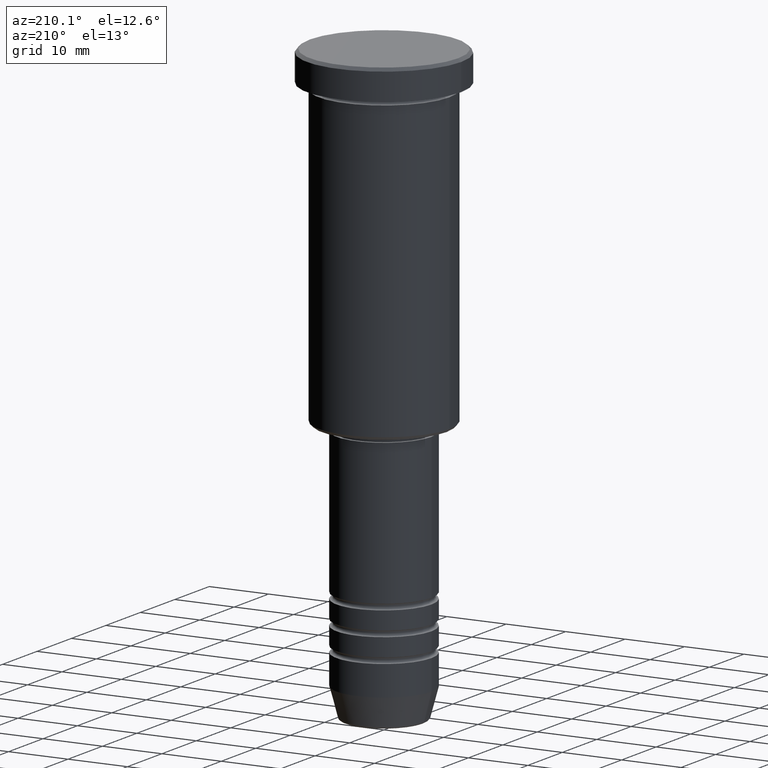
[diagram: clean part render]
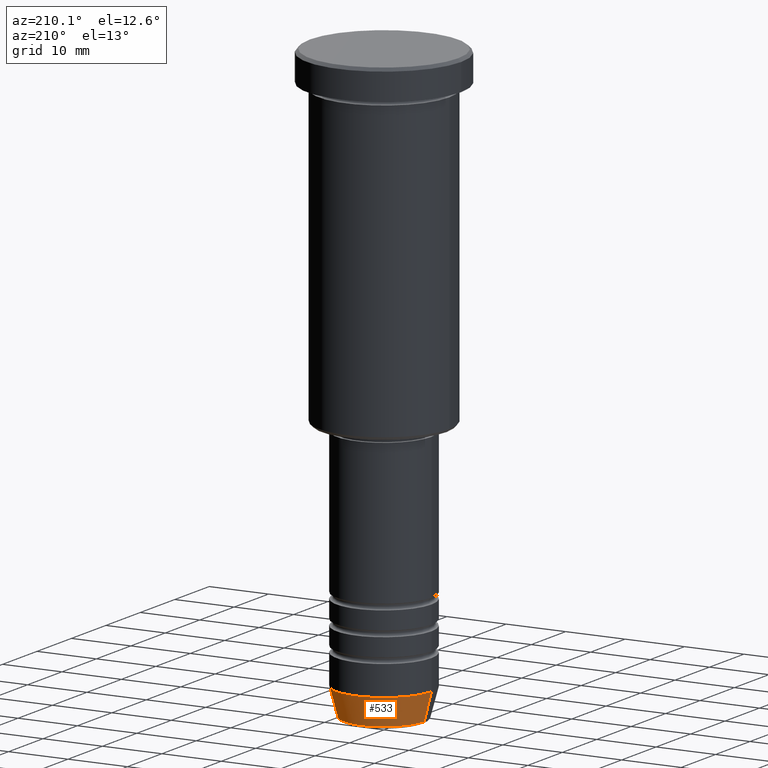
[diagram: same view with one face highlighted and labeled with its STEP entity id]
A machine part, auxiliary view. The second image highlights one B-rep face of the part: STEP entity #533.
In plain terms, the highlighted conical surface has half-angle 15 deg.
Its self-contained STEP definition (entity closure, byte-faithful):
#41 = DIRECTION ( 'NONE',  ( 1.000000000000000000, 0.000000000000000000, 0.000000000000000000 ) ) ;
#72 = DIRECTION ( 'NONE',  ( 0.2588190451025214611, 0.000000000000000000, 0.9659258262890679791 ) ) ;
#106 = VERTEX_POINT ( 'NONE', #133 ) ;
#115 = DIRECTION ( 'NONE',  ( 1.000000000000000000, 0.000000000000000000, 0.000000000000000000 ) ) ;
#126 = DIRECTION ( 'NONE',  ( -0.000000000000000000, -0.000000000000000000, 1.000000000000000000 ) ) ;
#133 = CARTESIAN_POINT ( 'NONE',  ( -8.000000000000000000, 9.797174393178825657E-16, -95.00000000000000000 ) ) ;
#182 = CARTESIAN_POINT ( 'NONE',  ( -6.759553456999437770, 9.037619948979306213E-16, -99.62940952255127058 ) ) ;
#237 = ORIENTED_EDGE ( 'NONE', *, *, #254, .T. ) ;
#250 = VERTEX_POINT ( 'NONE', #975 ) ;
#254 = EDGE_CURVE ( 'NONE', #345, #106, #616, .T. ) ;
#281 = EDGE_LOOP ( 'NONE', ( #693, #237, #401, #650 ) ) ;
#334 = CARTESIAN_POINT ( 'NONE',  ( 6.759553456999436882, 0.000000000000000000, -99.62940952255127058 ) ) ;
#345 = VERTEX_POINT ( 'NONE', #182 ) ;
#391 = CARTESIAN_POINT ( 'NONE',  ( 0.000000000000000000, 0.000000000000000000, -95.00000000000000000 ) ) ;
#401 = ORIENTED_EDGE ( 'NONE', *, *, #1168, .F. ) ;
#461 = DIRECTION ( 'NONE',  ( 1.000000000000000000, 0.000000000000000000, 0.000000000000000000 ) ) ;
#533 = ADVANCED_FACE ( 'NONE', ( #930 ), #732, .T. ) ;
#548 = DIRECTION ( 'NONE',  ( -0.000000000000000000, -0.000000000000000000, 1.000000000000000000 ) ) ;
#575 = CARTESIAN_POINT ( 'NONE',  ( 0.000000000000000000, 0.000000000000000000, -95.00000000000000000 ) ) ;
#602 = CIRCLE ( 'NONE', #1054, 6.759553456999436882 ) ;
#616 = LINE ( 'NONE', #621, #1045 ) ;
#621 = CARTESIAN_POINT ( 'NONE',  ( -8.000000000000000000, 9.797174393178825657E-16, -95.00000000000000000 ) ) ;
#650 = ORIENTED_EDGE ( 'NONE', *, *, #695, .F. ) ;
#677 = AXIS2_PLACEMENT_3D ( 'NONE', #575, #126, #41 ) ;
#683 = VERTEX_POINT ( 'NONE', #334 ) ;
#691 = DIRECTION ( 'NONE',  ( -0.2588190451025214611, 3.169619151431774186E-17, 0.9659258262890679791 ) ) ;
#693 = ORIENTED_EDGE ( 'NONE', *, *, #1066, .T. ) ;
#695 = EDGE_CURVE ( 'NONE', #683, #250, #1146, .T. ) ;
#732 = CONICAL_SURFACE ( 'NONE', #677, 8.000000000000000000, 0.2617993877991502405 ) ;
#810 = VECTOR ( 'NONE', #72, 1000.000000000000114 ) ;
#883 = CIRCLE ( 'NONE', #990, 8.000000000000000000 ) ;
#889 = CARTESIAN_POINT ( 'NONE',  ( 8.000000000000000000, 0.000000000000000000, -95.00000000000000000 ) ) ;
#930 = FACE_OUTER_BOUND ( 'NONE', #281, .T. ) ;
#975 = CARTESIAN_POINT ( 'NONE',  ( 8.000000000000000000, 0.000000000000000000, -95.00000000000000000 ) ) ;
#990 = AXIS2_PLACEMENT_3D ( 'NONE', #391, #548, #461 ) ;
#1029 = DIRECTION ( 'NONE',  ( -0.000000000000000000, -0.000000000000000000, 1.000000000000000000 ) ) ;
#1045 = VECTOR ( 'NONE', #691, 1000.000000000000114 ) ;
#1054 = AXIS2_PLACEMENT_3D ( 'NONE', #1133, #1029, #115 ) ;
#1066 = EDGE_CURVE ( 'NONE', #683, #345, #602, .T. ) ;
#1133 = CARTESIAN_POINT ( 'NONE',  ( 0.000000000000000000, 0.000000000000000000, -99.62940952255127058 ) ) ;
#1146 = LINE ( 'NONE', #889, #810 ) ;
#1168 = EDGE_CURVE ( 'NONE', #250, #106, #883, .T. ) ;